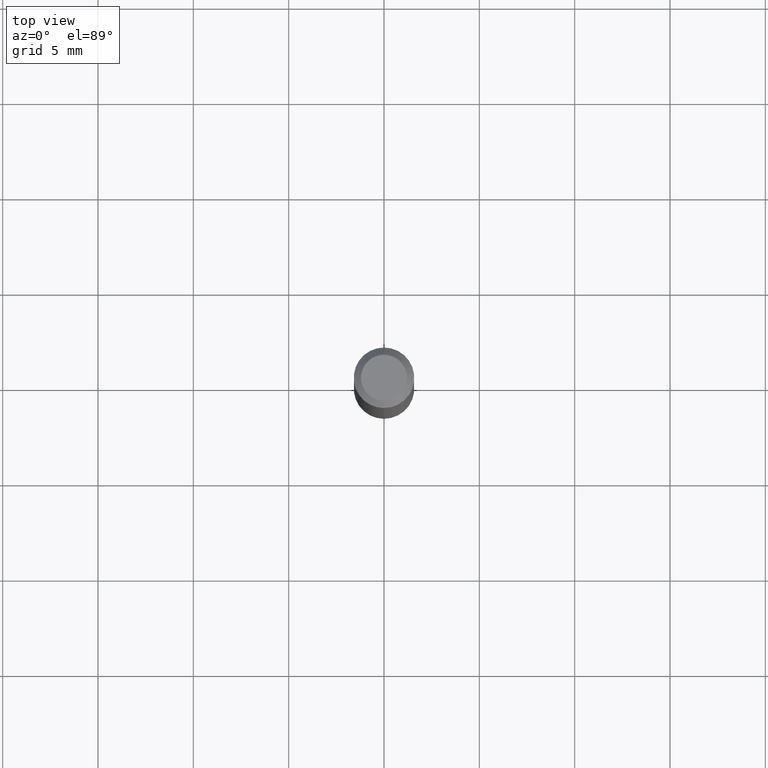
[diagram: clean part render]
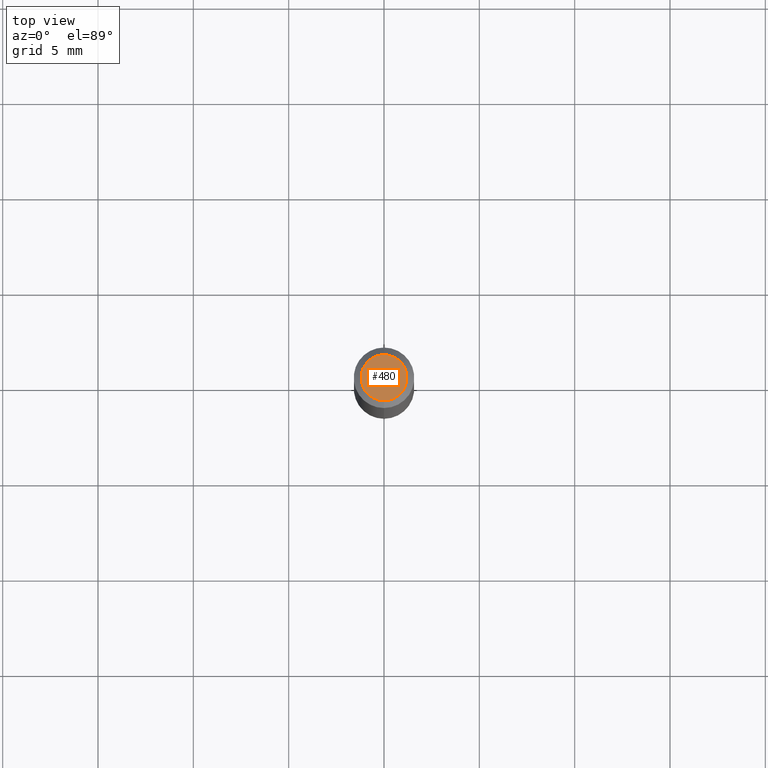
[diagram: same view with one face highlighted and labeled with its STEP entity id]
A machine part, top view. The second image highlights one B-rep face of the part: STEP entity #480.
In plain terms, the highlighted planar face has unit normal (0, -0, -1).
Its self-contained STEP definition (entity closure, byte-faithful):
#54 = CARTESIAN_POINT ( 'NONE',  ( -3.773273898774340269E-16, -0.04749999999999999362, 1.569867856580470595E-16 ) ) ;
#75 = CARTESIAN_POINT ( 'NONE',  ( 3.840629472727447874E-16, 0.04749999999999999362, -1.747056831868805136E-16 ) ) ;
#85 = EDGE_LOOP ( 'NONE', ( #114, #443 ) ) ;
#86 = DIRECTION ( 'NONE',  ( -6.982962677686266711E-15, -1.000000000000000000, 3.491499672051869908E-15 ) ) ;
#114 = ORIENTED_EDGE ( 'NONE', *, *, #429, .T. ) ;
#117 = CIRCLE ( 'NONE', #442, 0.04749999999999999362 ) ;
#129 = CARTESIAN_POINT ( 'NONE',  ( 2.166539217461399004E-46, -3.093276245552132395E-32, -8.859448764416720880E-18 ) ) ;
#131 = DIRECTION ( 'NONE',  ( 6.982962677686265922E-15, 1.000000000000000000, -3.491499672051869513E-15 ) ) ;
#135 = DIRECTION ( 'NONE',  ( 2.445456004173908007E-29, -3.491499672051869513E-15, -1.000000000000000000 ) ) ;
#211 = CARTESIAN_POINT ( 'NONE',  ( 3.316907271900976096E-16, 0.04749999999999999362, -1.702759588046721440E-16 ) ) ;
#212 = DIRECTION ( 'NONE',  ( -2.445456004173908568E-29, 3.491499672051869513E-15, 1.000000000000000000 ) ) ;
#236 = CIRCLE ( 'NONE', #433, 0.04749999999999999362 ) ;
#249 = PLANE ( 'NONE',  #266 ) ;
#254 = CARTESIAN_POINT ( 'NONE',  ( 2.166539217461399004E-46, -3.093276245552132395E-32, -8.859448764416720880E-18 ) ) ;
#266 = AXIS2_PLACEMENT_3D ( 'NONE', #211, #135, #131 ) ;
#273 = VERTEX_POINT ( 'NONE', #54 ) ;
#298 = EDGE_CURVE ( 'NONE', #273, #403, #117, .T. ) ;
#370 = DIRECTION ( 'NONE',  ( -6.982962677686266711E-15, -1.000000000000000000, 3.491499672051869908E-15 ) ) ;
#373 = FACE_OUTER_BOUND ( 'NONE', #85, .T. ) ;
#403 = VERTEX_POINT ( 'NONE', #75 ) ;
#414 = DIRECTION ( 'NONE',  ( -2.445456004173908568E-29, 3.491499672051869513E-15, 1.000000000000000000 ) ) ;
#429 = EDGE_CURVE ( 'NONE', #403, #273, #236, .T. ) ;
#433 = AXIS2_PLACEMENT_3D ( 'NONE', #254, #414, #86 ) ;
#442 = AXIS2_PLACEMENT_3D ( 'NONE', #129, #212, #370 ) ;
#443 = ORIENTED_EDGE ( 'NONE', *, *, #298, .T. ) ;
#480 = ADVANCED_FACE ( 'NONE', ( #373 ), #249, .F. ) ;